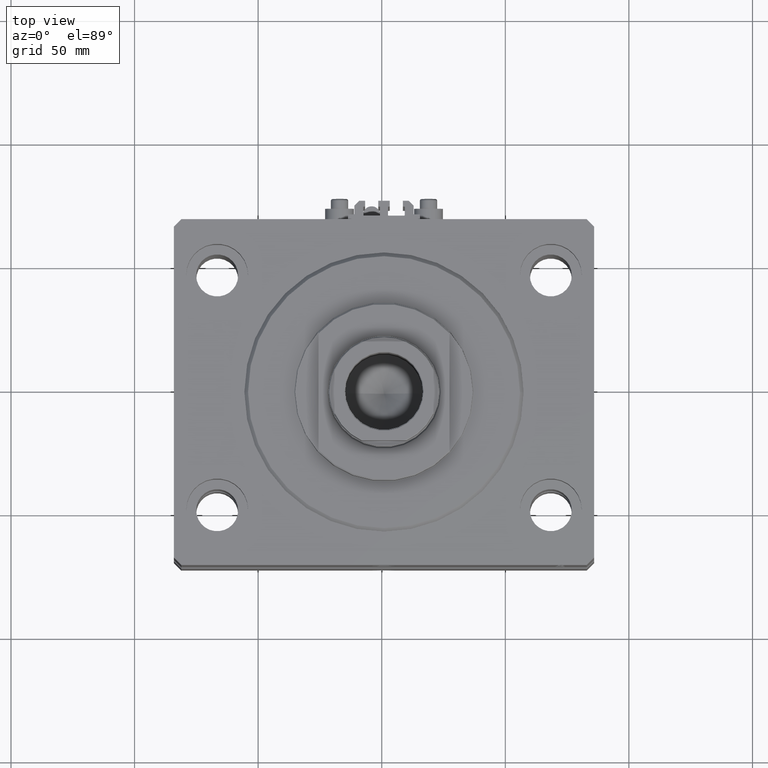
[diagram: clean part render]
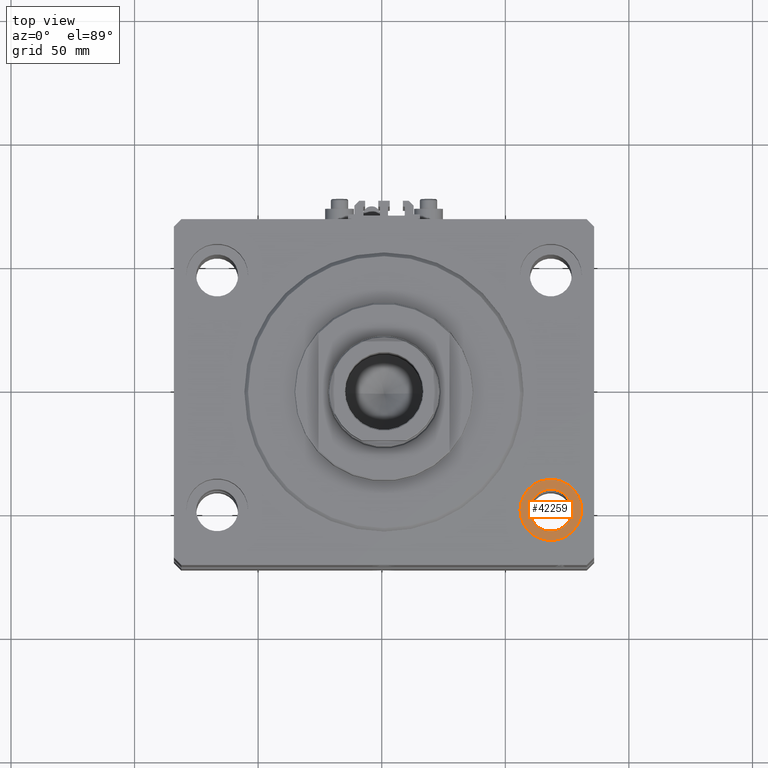
[diagram: same view with one face highlighted and labeled with its STEP entity id]
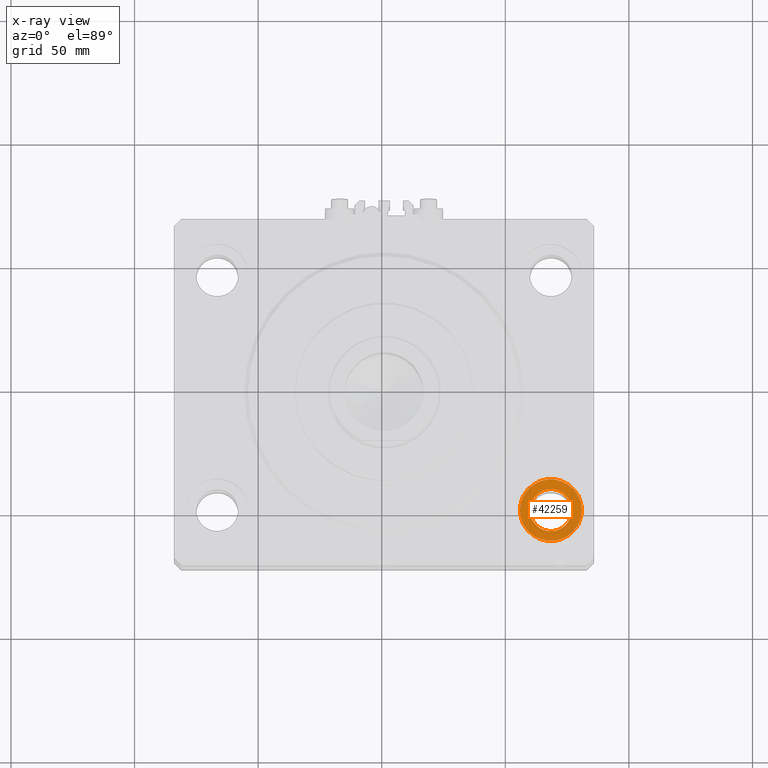
[diagram: x-ray of the same camera — body ghosted, the highlighted face saturated]
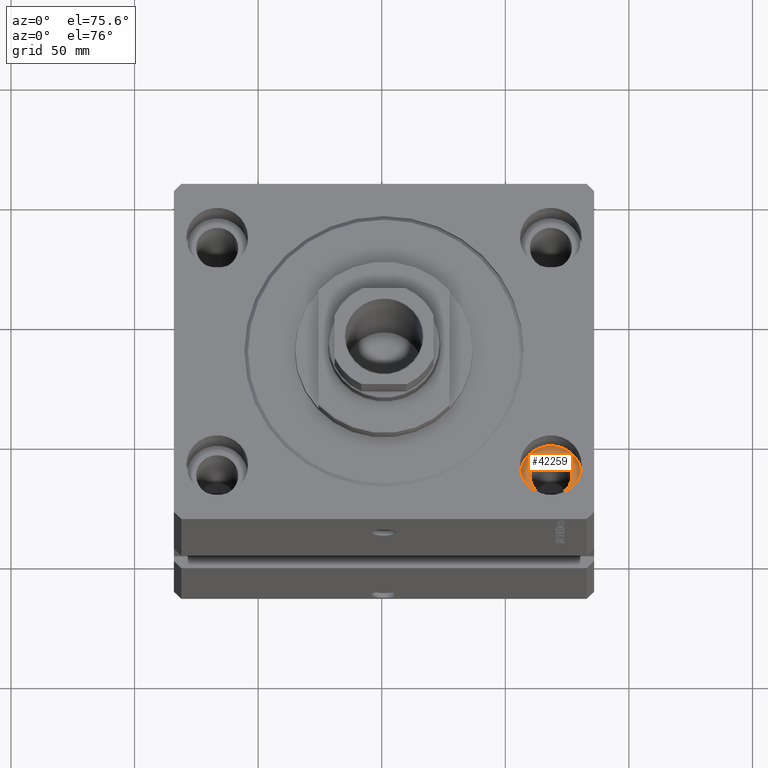
[diagram: same view with one face highlighted and labeled with its STEP entity id]
A machine part, top view. The second image highlights one B-rep face of the part: STEP entity #42259.
The next image is the same camera in x-ray: the body ghosted, the highlighted face saturated — about 0% of this face is hidden behind the body in this view.
A second angle (auxiliary view) of the same face is appended — the face is thin or edge-on in the first view.
In plain terms, the highlighted planar face has unit normal (0, 0, 1).
Its self-contained STEP definition (entity closure, byte-faithful):
#386 = EDGE_CURVE ( 'NONE', #39825, #14636, #13039, .T. ) ;
#1375 = CARTESIAN_POINT ( 'NONE',  ( 67.50000000000000000, -47.50000000000000000, -17.00000000000000000 ) ) ;
#1749 = FACE_BOUND ( 'NONE', #3305, .T. ) ;
#3305 = EDGE_LOOP ( 'NONE', ( #12308, #36527 ) ) ;
#5594 = VERTEX_POINT ( 'NONE', #25701 ) ;
#6077 = DIRECTION ( 'NONE',  ( 1.000000000000000000, 0.000000000000000000, 0.000000000000000000 ) ) ;
#9606 = AXIS2_PLACEMENT_3D ( 'NONE', #1375, #23529, #16783 ) ;
#9725 = CARTESIAN_POINT ( 'NONE',  ( 59.00000000000000000, -47.50000000000000000, -17.00000000000000000 ) ) ;
#12257 = CIRCLE ( 'NONE', #30529, 12.49999999999999645 ) ;
#12308 = ORIENTED_EDGE ( 'NONE', *, *, #386, .F. ) ;
#12538 = CIRCLE ( 'NONE', #39570, 12.49999999999999645 ) ;
#13039 = CIRCLE ( 'NONE', #19393, 8.500000000000007105 ) ;
#14636 = VERTEX_POINT ( 'NONE', #9725 ) ;
#16384 = EDGE_CURVE ( 'NONE', #14636, #39825, #27085, .T. ) ;
#16459 = CARTESIAN_POINT ( 'NONE',  ( 76.00000000000001421, -47.50000000000000000, -17.00000000000000000 ) ) ;
#16783 = DIRECTION ( 'NONE',  ( 1.000000000000000000, 0.000000000000000000, 0.000000000000000000 ) ) ;
#16907 = FACE_OUTER_BOUND ( 'NONE', #17698, .T. ) ;
#17317 = CARTESIAN_POINT ( 'NONE',  ( 67.50000000000000000, -47.50000000000000000, -17.00000000000000000 ) ) ;
#17698 = EDGE_LOOP ( 'NONE', ( #30719, #18147 ) ) ;
#18147 = ORIENTED_EDGE ( 'NONE', *, *, #35160, .T. ) ;
#19393 = AXIS2_PLACEMENT_3D ( 'NONE', #39440, #43425, #6077 ) ;
#20103 = DIRECTION ( 'NONE',  ( 0.000000000000000000, 0.000000000000000000, 1.000000000000000000 ) ) ;
#23529 = DIRECTION ( 'NONE',  ( 0.000000000000000000, 0.000000000000000000, 1.000000000000000000 ) ) ;
#23572 = EDGE_CURVE ( 'NONE', #29870, #5594, #12257, .T. ) ;
#24638 = DIRECTION ( 'NONE',  ( 1.000000000000000000, 0.000000000000000000, -0.000000000000000000 ) ) ;
#25701 = CARTESIAN_POINT ( 'NONE',  ( 55.00000000000000711, -47.50000000000000000, -17.00000000000000000 ) ) ;
#27085 = CIRCLE ( 'NONE', #9606, 8.500000000000007105 ) ;
#28370 = CARTESIAN_POINT ( 'NONE',  ( 67.50000000000000000, -47.50000000000000000, -17.00000000000000000 ) ) ;
#29013 = DIRECTION ( 'NONE',  ( 1.000000000000000000, 0.000000000000000000, 0.000000000000000000 ) ) ;
#29870 = VERTEX_POINT ( 'NONE', #48767 ) ;
#30529 = AXIS2_PLACEMENT_3D ( 'NONE', #46494, #20103, #34558 ) ;
#30719 = ORIENTED_EDGE ( 'NONE', *, *, #23572, .T. ) ;
#32092 = PLANE ( 'NONE',  #32624 ) ;
#32624 = AXIS2_PLACEMENT_3D ( 'NONE', #28370, #43556, #24638 ) ;
#34558 = DIRECTION ( 'NONE',  ( 1.000000000000000000, 0.000000000000000000, 0.000000000000000000 ) ) ;
#35160 = EDGE_CURVE ( 'NONE', #5594, #29870, #12538, .T. ) ;
#36527 = ORIENTED_EDGE ( 'NONE', *, *, #16384, .F. ) ;
#39440 = CARTESIAN_POINT ( 'NONE',  ( 67.50000000000000000, -47.50000000000000000, -17.00000000000000000 ) ) ;
#39570 = AXIS2_PLACEMENT_3D ( 'NONE', #17317, #44447, #29013 ) ;
#39825 = VERTEX_POINT ( 'NONE', #16459 ) ;
#42259 = ADVANCED_FACE ( 'NONE', ( #1749, #16907 ), #32092, .T. ) ;
#43425 = DIRECTION ( 'NONE',  ( 0.000000000000000000, 0.000000000000000000, 1.000000000000000000 ) ) ;
#43556 = DIRECTION ( 'NONE',  ( 0.000000000000000000, 0.000000000000000000, 1.000000000000000000 ) ) ;
#44447 = DIRECTION ( 'NONE',  ( 0.000000000000000000, 0.000000000000000000, 1.000000000000000000 ) ) ;
#46494 = CARTESIAN_POINT ( 'NONE',  ( 67.50000000000000000, -47.50000000000000000, -17.00000000000000000 ) ) ;
#48767 = CARTESIAN_POINT ( 'NONE',  ( 80.00000000000000000, -47.50000000000000000, -17.00000000000000000 ) ) ;